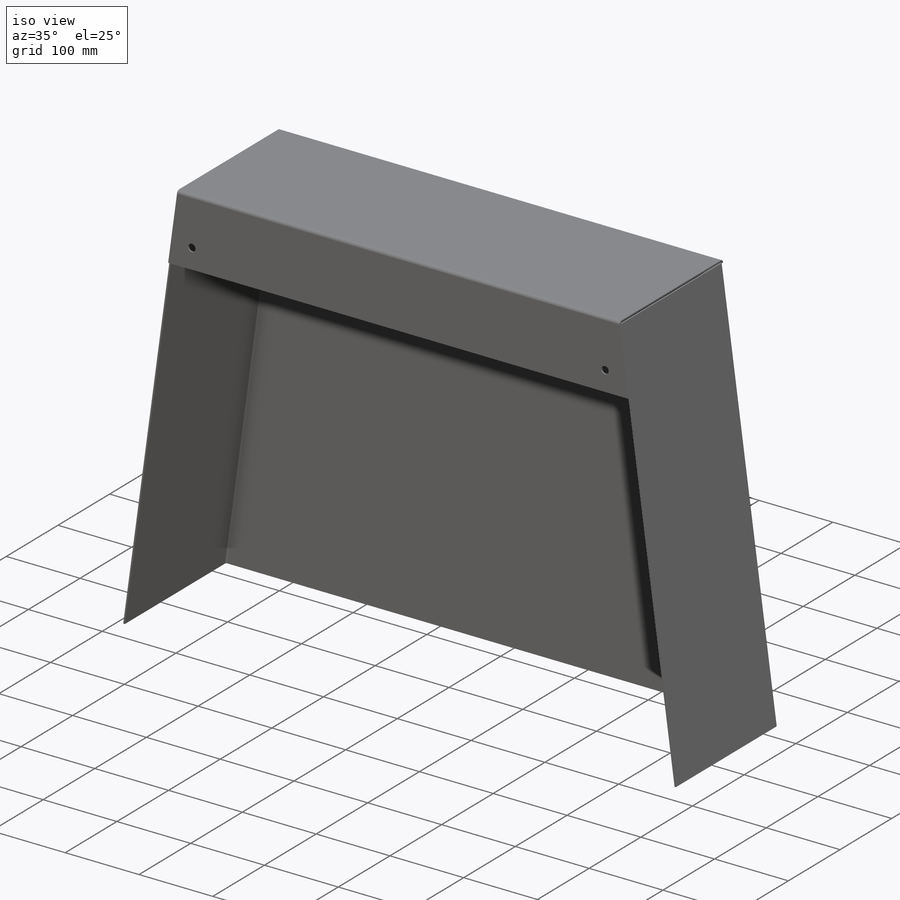
[diagram: iso view]
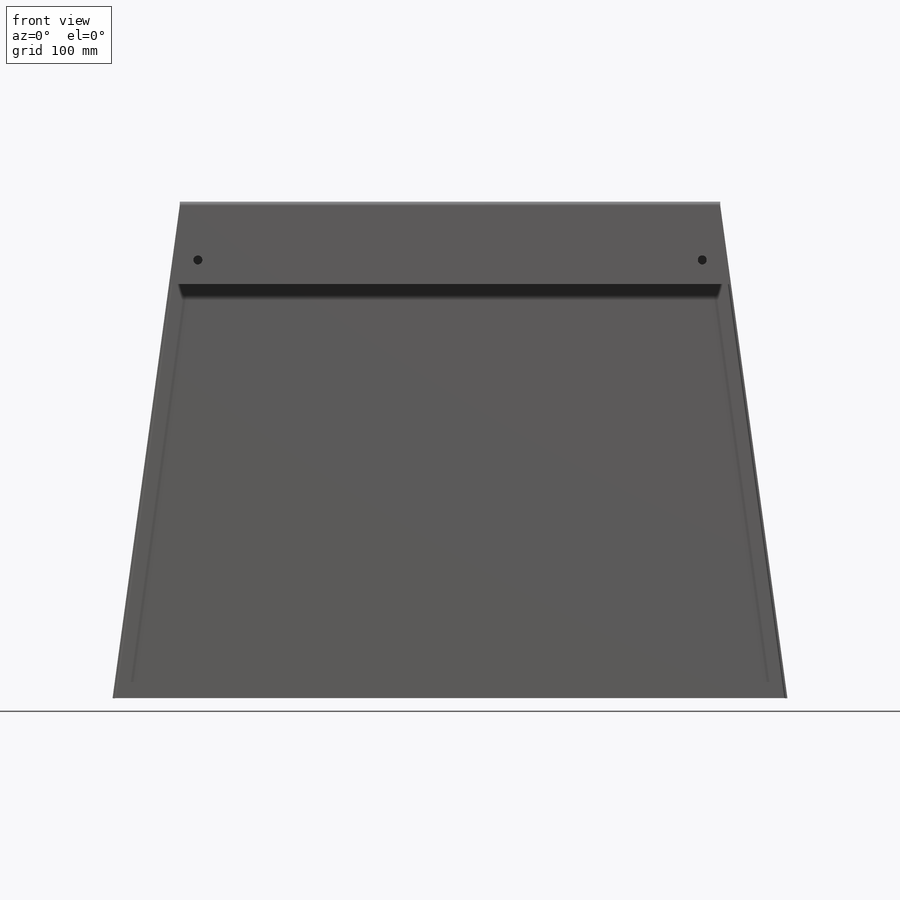
[diagram: front view]
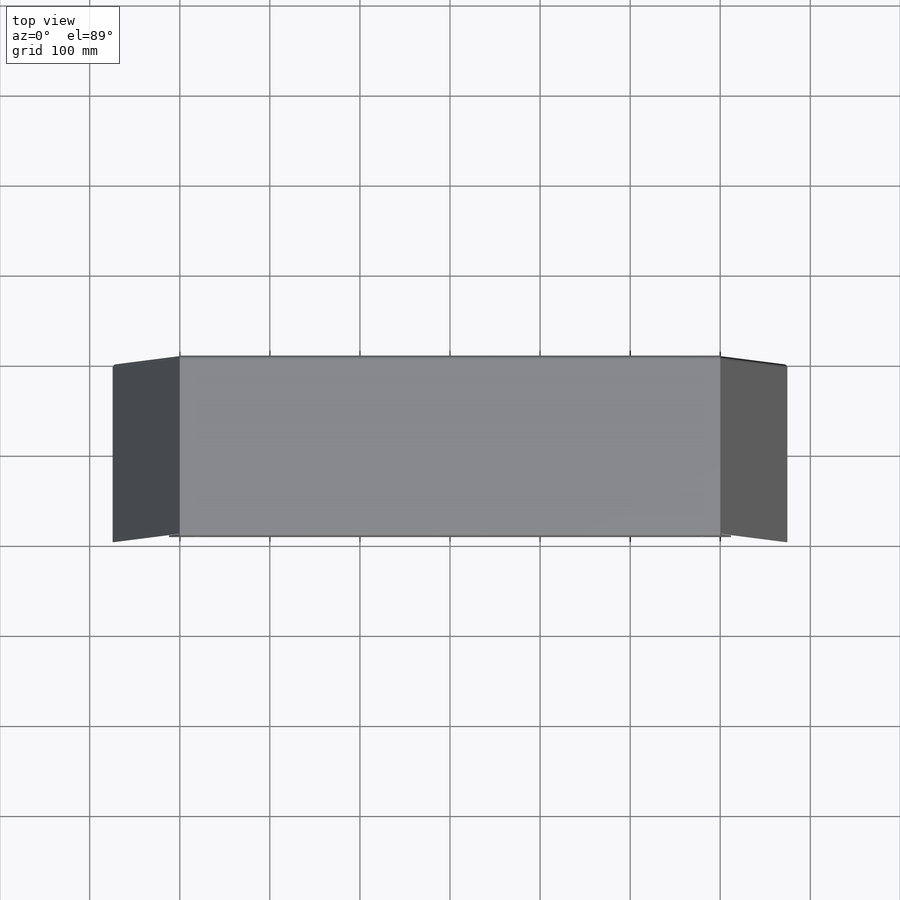
[diagram: top view]
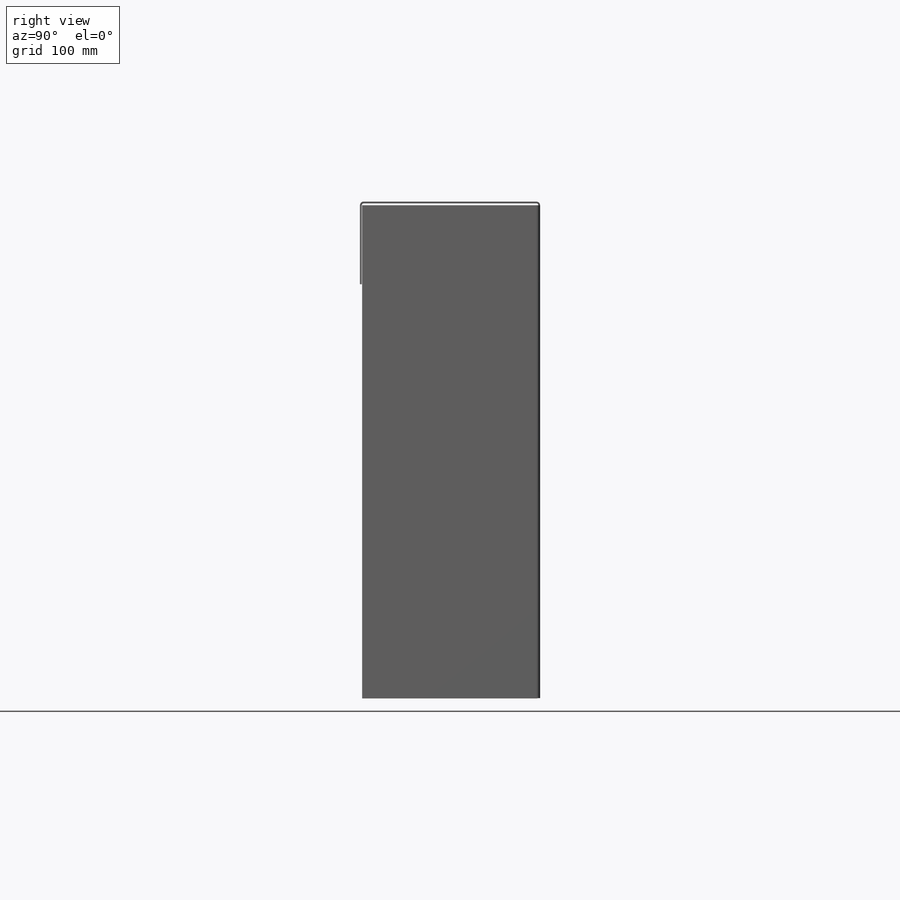
[diagram: right view]
SOLIDWORKS PART (.sldprt)
format: sldprt  version: not decoded by parser v0  size: 372,736 bytes
history: native  units: mm
features: sketch x14, sheet_metal_op x5, plane x4, cut_extrude x2, material x1, extrude x1 + 4 further entries (+8 scaffold rows collapsed; 3 parser-record rows omitted)
feature tree (42):
  scaffold x8  (default folders/planes/origin — collapsed)
  material  "Material <nicht festgelegt>"
  plane  "Ebene vorne"
  plane  "Ebene oben"
  plane  "Ebene rechts"
  sketch  "Skizze1"  dims[D1=550.0mm D2=750.0mm D3=300.0mm D4=300.0mm]
  sheet_metal_op  "Blech1"
  sheet_metal_op  "Basis-Blech1"
  sketch  "Skizze6"  dims[c1.D1=2.0mm c1.D4=90.0deg c1.D5=1.0 c1.D8=1.0mm c1.D9=1.0mm c2.D1=2.0mm c2.D2=500.0mm c2.D3=0.0mm c2.D6=10.0mm c2.D7=200.0mm]
  sketch  "Skizze7"  dims[D1=2.74mm]
  cut_extrude  "Schnitt-Linear austragen1"  Depth=10mm Kante-Lasche2=0
  sketch  "Skizze10"
  sheet_metal_op  "Kantenbiegung2"
  sketch  "Skizze11"
  extrude  "Aufsatz-Linear austragen1"  Depth=2mm
  sketch  "Skizze25"  dims[D1=10.0mm D2=10.0mm D3=560.0mm D4=280.0mm]
  cut_extrude  "Schnitt-Linear austragen4"  Depth=2mm Kante-Lasche6=0
  sketch  "Skizze31"
  sheet_metal_op  "Kantenbiegung7"  Kante-Lasche8=0
  sketch  "Skizze39"
  sheet_metal_op  "Kantenbiegung9"
  parser-record x3  (decoder bookkeeping rows leaked as tree rows — omitted from the tree; the rows remain in map.json)
  sketch  "Skizze11-1"
  sketch  "Skizze25-1"  dims[D1=10.0mm D2=10.0mm D3=560.0mm D4=280.0mm]
  plane  "Ebene2"
  sketch  "Skizze11-2"
  sketch  "Skizze25-2"  dims[D1=10.0mm D2=10.0mm D3=560.0mm D4=280.0mm]
  "Abwicklung1"
  sketch  "Biegung-Linien1"
  sketch  "Rahmen1"
  "Abwickeln-<Kantenbiegung2>1"
  "Abwickeln-<Kantenbiegung7>1"
  "Abwickeln-<Kantenbiegung9>1"
decode coverage: 10 of 22 modeling features carry decoded parameters; 4 rows unclassified (native names shown)
note: suppression state not decoded; provenance and decode notes live in map.json
